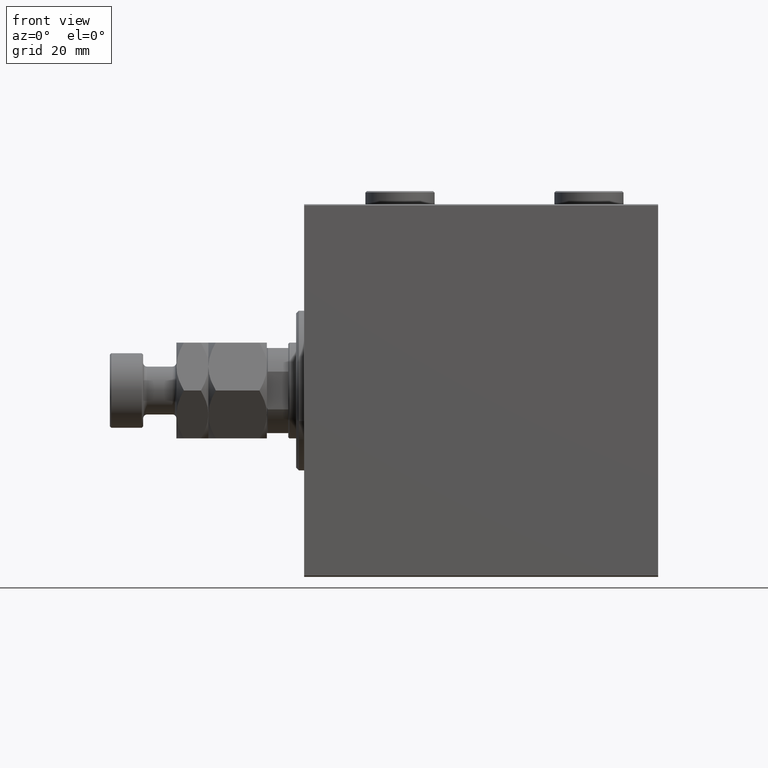
[diagram: clean part render]
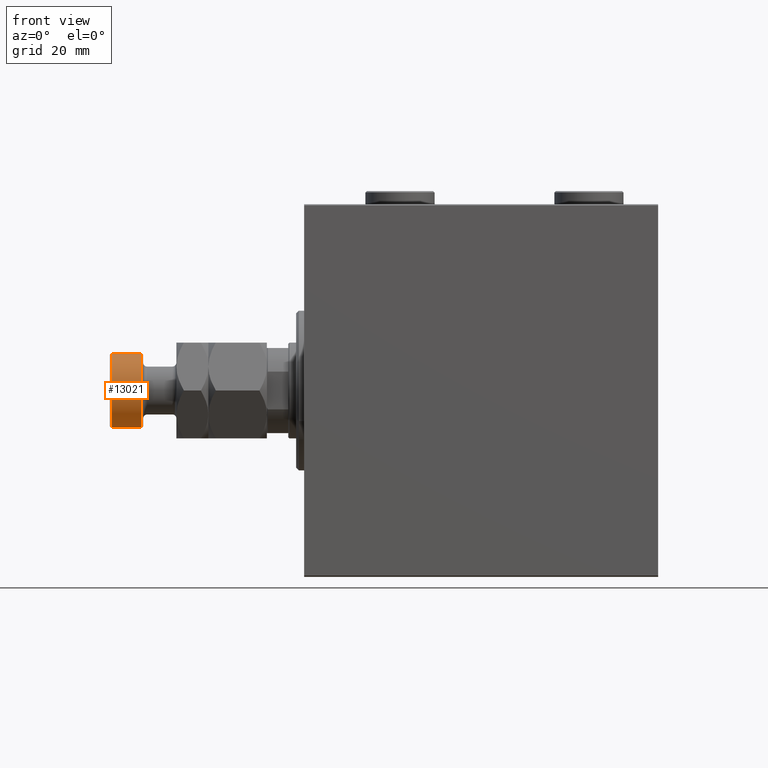
[diagram: same view with one face highlighted and labeled with its STEP entity id]
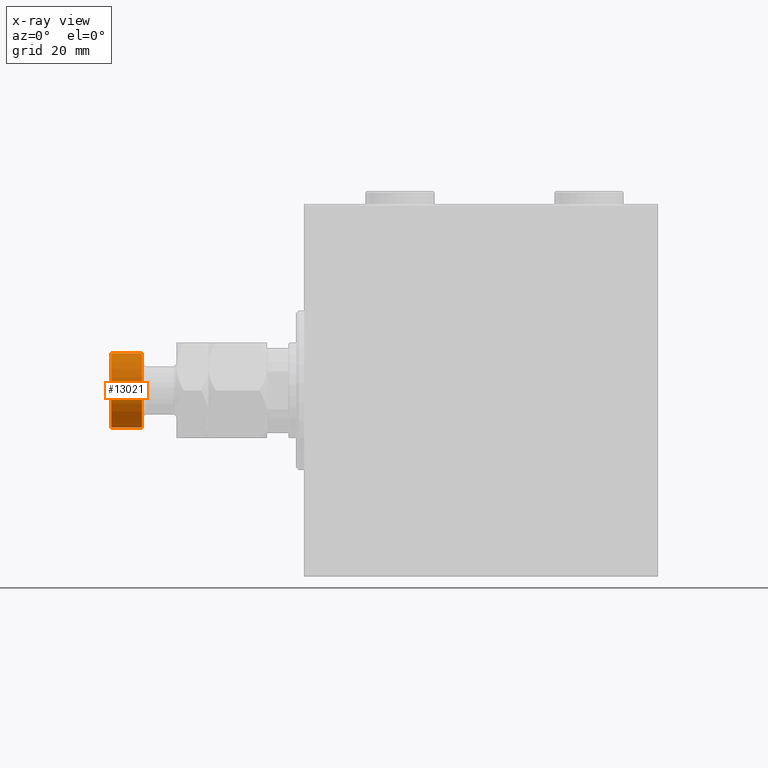
[diagram: x-ray of the same camera — body ghosted, the highlighted face saturated]
A machine part, front view. The second image highlights one B-rep face of the part: STEP entity #13021.
The next image is the same camera in x-ray: the body ghosted, the highlighted face saturated — about 0% of this face is hidden behind the body in this view.
In plain terms, the highlighted cylindrical surface (partial cylindrical patch) has radius 14 mm, axis along (1, -0, -0).
Its self-contained STEP definition (entity closure, byte-faithful):
#324 = ORIENTED_EDGE ( 'NONE', *, *, #38265, .T. ) ;
#488 = ORIENTED_EDGE ( 'NONE', *, *, #22409, .T. ) ;
#694 = DIRECTION ( 'NONE',  ( -0.000000000000000000, -0.000000000000000000, -1.000000000000000000 ) ) ;
#2392 = ORIENTED_EDGE ( 'NONE', *, *, #30483, .T. ) ;
#2674 = VERTEX_POINT ( 'NONE', #7469 ) ;
#4115 = AXIS2_PLACEMENT_3D ( 'NONE', #10121, #17510, #24654 ) ;
#5698 = FACE_OUTER_BOUND ( 'NONE', #23319, .T. ) ;
#7469 = CARTESIAN_POINT ( 'NONE',  ( -14.00000000000000000, 0.000000000000000000, 58.50000000000002132 ) ) ;
#7698 = DIRECTION ( 'NONE',  ( 0.000000000000000000, 0.000000000000000000, -1.000000000000000000 ) ) ;
#7991 = DIRECTION ( 'NONE',  ( -0.000000000000000000, -0.000000000000000000, -1.000000000000000000 ) ) ;
#9721 = DIRECTION ( 'NONE',  ( -1.000000000000000000, 0.000000000000000000, 0.000000000000000000 ) ) ;
#10121 = CARTESIAN_POINT ( 'NONE',  ( 0.000000000000000000, 0.000000000000000000, 46.99999999999998579 ) ) ;
#13021 = ADVANCED_FACE ( 'NONE', ( #5698 ), #31392, .T. ) ;
#13408 = CARTESIAN_POINT ( 'NONE',  ( 14.00000000000000000, 1.714505518806294638E-15, 46.99999999999998579 ) ) ;
#15291 = DIRECTION ( 'NONE',  ( 1.000000000000000000, 0.000000000000000000, 0.000000000000000000 ) ) ;
#17510 = DIRECTION ( 'NONE',  ( -0.000000000000000000, -0.000000000000000000, 1.000000000000000000 ) ) ;
#17990 = VECTOR ( 'NONE', #694, 1000.000000000000000 ) ;
#18869 = CARTESIAN_POINT ( 'NONE',  ( 0.000000000000000000, 0.000000000000000000, 58.50000000000002132 ) ) ;
#19027 = VERTEX_POINT ( 'NONE', #31222 ) ;
#21414 = ORIENTED_EDGE ( 'NONE', *, *, #38007, .F. ) ;
#21706 = VERTEX_POINT ( 'NONE', #45436 ) ;
#22409 = EDGE_CURVE ( 'NONE', #19027, #2674, #30562, .T. ) ;
#23319 = EDGE_LOOP ( 'NONE', ( #21414, #488, #324, #2392 ) ) ;
#23553 = CARTESIAN_POINT ( 'NONE',  ( 0.000000000000000000, 0.000000000000000000, 59.00000000000000000 ) ) ;
#24654 = DIRECTION ( 'NONE',  ( 1.000000000000000000, 0.000000000000000000, 0.000000000000000000 ) ) ;
#26601 = CARTESIAN_POINT ( 'NONE',  ( 14.00000000000000000, 1.714505518806294638E-15, 59.00000000000000000 ) ) ;
#27097 = VECTOR ( 'NONE', #7991, 1000.000000000000000 ) ;
#30483 = EDGE_CURVE ( 'NONE', #21706, #42164, #32219, .T. ) ;
#30562 = CIRCLE ( 'NONE', #38155, 14.00000000000000000 ) ;
#31222 = CARTESIAN_POINT ( 'NONE',  ( 14.00000000000000000, 1.714505518806294638E-15, 58.50000000000002132 ) ) ;
#31392 = CYLINDRICAL_SURFACE ( 'NONE', #45556, 14.00000000000000000 ) ;
#32219 = CIRCLE ( 'NONE', #4115, 14.00000000000000000 ) ;
#34264 = DIRECTION ( 'NONE',  ( -0.000000000000000000, -0.000000000000000000, -1.000000000000000000 ) ) ;
#37023 = LINE ( 'NONE', #43682, #27097 ) ;
#38007 = EDGE_CURVE ( 'NONE', #19027, #42164, #40646, .T. ) ;
#38155 = AXIS2_PLACEMENT_3D ( 'NONE', #18869, #7698, #15291 ) ;
#38265 = EDGE_CURVE ( 'NONE', #2674, #21706, #37023, .T. ) ;
#40646 = LINE ( 'NONE', #26601, #17990 ) ;
#42164 = VERTEX_POINT ( 'NONE', #13408 ) ;
#43682 = CARTESIAN_POINT ( 'NONE',  ( -14.00000000000000000, 0.000000000000000000, 59.00000000000000000 ) ) ;
#45436 = CARTESIAN_POINT ( 'NONE',  ( -14.00000000000000000, 0.000000000000000000, 46.99999999999998579 ) ) ;
#45556 = AXIS2_PLACEMENT_3D ( 'NONE', #23553, #34264, #9721 ) ;